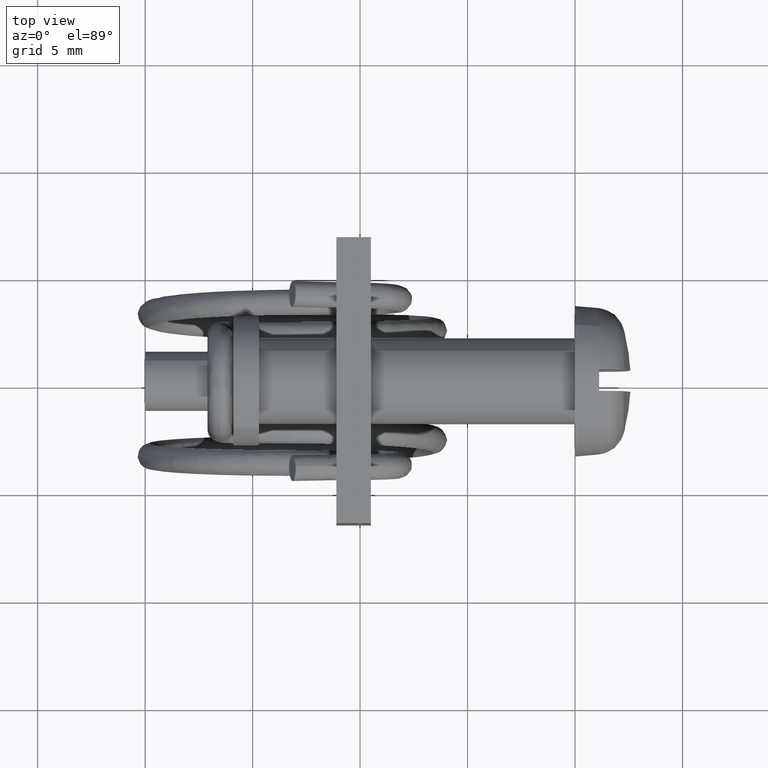
[diagram: clean part render]
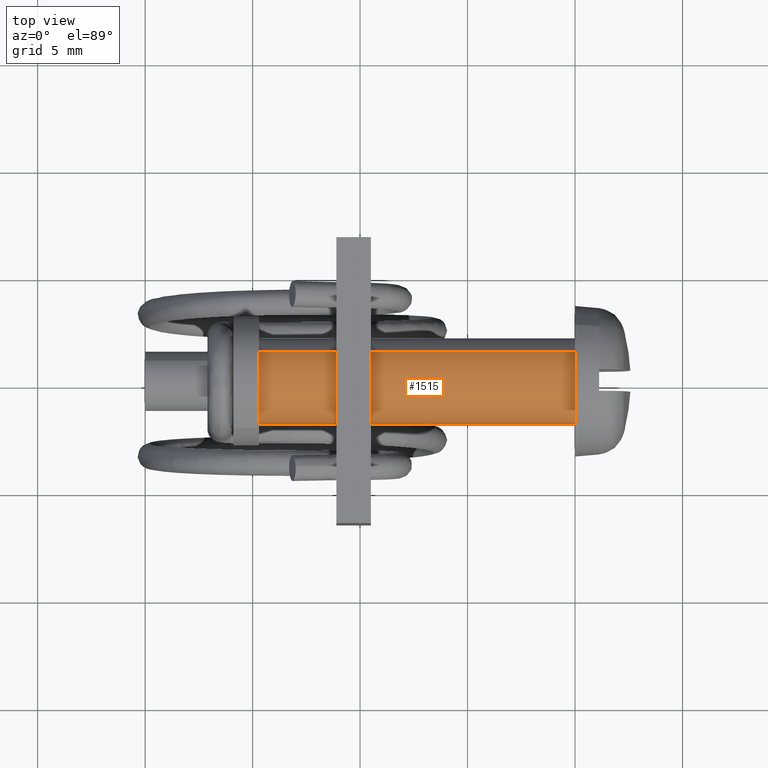
[diagram: same view with one face highlighted and labeled with its STEP entity id]
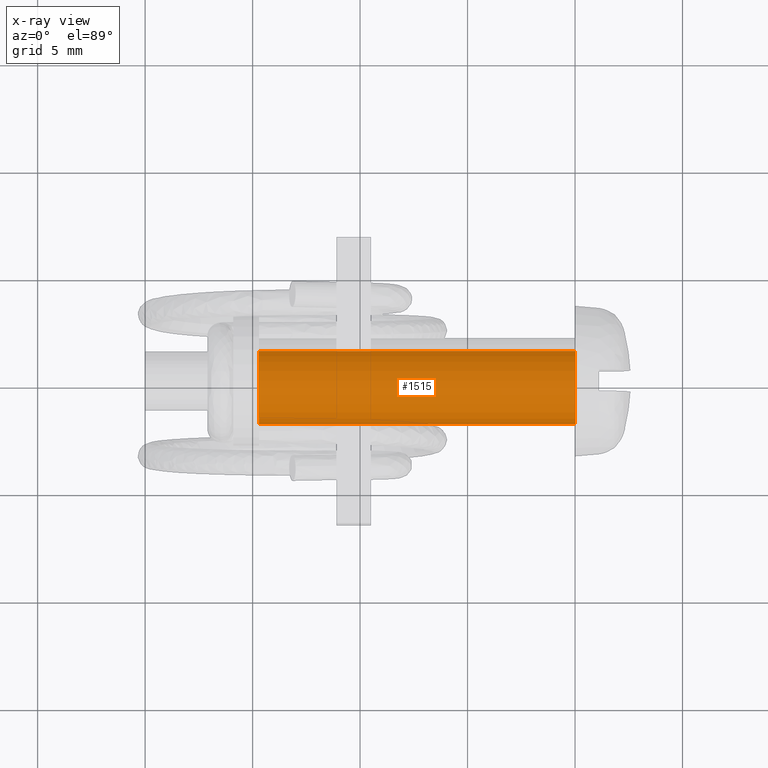
[diagram: x-ray of the same camera — body ghosted, the highlighted face saturated]
A machine part, top view. The second image highlights one B-rep face of the part: STEP entity #1515.
The next image is the same camera in x-ray: the body ghosted, the highlighted face saturated — about 0% of this face is hidden behind the body in this view.
In plain terms, the highlighted face is a freeform B-spline surface patch.
Its self-contained STEP definition (entity closure, byte-faithful):
#1169=CARTESIAN_POINT('',(-14.700000000000090,-1.376709074266970,-1.450748699295900));
#1170=VERTEX_POINT('',#1169);
#1180=CARTESIAN_POINT('',(-14.700000000000200,-1.999999999999972,0.000000336783781));
#1181=VERTEX_POINT('',#1180);
#1182=CARTESIAN_POINT('',(-14.700000000000090,-1.376709074266970,-1.450748699295900));
#1183=CARTESIAN_POINT('',(-14.700000000000120,-1.499390220607086,-1.334392403262295));
#1184=CARTESIAN_POINT('',(-14.700000000000090,-1.666421277100797,-1.129720783756586));
#1185=CARTESIAN_POINT('',(-14.700000000000140,-1.861205923868284,-0.762977249641866));
#1186=CARTESIAN_POINT('',(-14.700000000000230,-1.973397682854460,-0.405790248794317));
#1187=CARTESIAN_POINT('',(-14.700000000000150,-2.000010282984071,-0.126808037152926));
#1188=CARTESIAN_POINT('',(-14.700000000000200,-1.999999999999972,0.000000336783781));
#1189=B_SPLINE_CURVE_WITH_KNOTS('',3,(#1182,#1183,#1184,#1185,#1186,#1187,#1188),.UNSPECIFIED.,.F.,.U.,(4,1,1,1,4),(9.544020E-009,0.507239891594600,0.786226788890516,1.242737819834368,1.623167408407789),.UNSPECIFIED.);
#1190=EDGE_CURVE('',#1170,#1181,#1189,.T.);
#1192=CARTESIAN_POINT('',(-14.700000000000200,0.0,2.0));
#1193=VERTEX_POINT('',#1192);
#1194=CARTESIAN_POINT('',(-14.700000000000200,-1.999999999999972,0.000000336783781));
#1195=CARTESIAN_POINT('',(-14.700000000000230,-2.000035983223918,0.155446519749069));
#1196=CARTESIAN_POINT('',(-14.700000000000150,-1.969313106513638,0.417227334405334));
#1197=CARTESIAN_POINT('',(-14.700000000000230,-1.837951308691051,0.823294776388127));
#1198=CARTESIAN_POINT('',(-14.700000000000101,-1.642944839514601,1.167555491397967));
#1199=CARTESIAN_POINT('',(-14.700000000000310,-1.385347349354855,1.455235386556221));
#1200=CARTESIAN_POINT('',(-14.700000000000180,-1.129159333323061,1.660272266187684));
#1201=CARTESIAN_POINT('',(-14.700000000000090,-0.830289180870058,1.832038131839601));
#1202=CARTESIAN_POINT('',(-14.700000000000150,-0.449954780055621,1.965484535611923));
#1203=CARTESIAN_POINT('',(-14.700000000000379,-0.155446249810551,2.000035993727298));
#1204=CARTESIAN_POINT('',(-14.700000000000200,0.0,2.0));
#1205=B_SPLINE_CURVE_WITH_KNOTS('',3,(#1194,#1195,#1196,#1197,#1198,#1199,#1200,#1201,#1202,#1203,#1204),.UNSPECIFIED.,.F.,.U.,(4,1,1,1,1,1,1,1,4),(0.000000032458382,0.466331602151129,0.785403171026925,1.276281329842663,1.644428534287432,1.938960398357279,2.258032005585520,2.675280363094002,3.141612175933682),.UNSPECIFIED.);
#1206=EDGE_CURVE('',#1181,#1193,#1205,.T.);
#1208=CARTESIAN_POINT('',(-14.700000000000090,1.376709074266977,1.450748699295907));
#1209=VERTEX_POINT('',#1208);
#1210=CARTESIAN_POINT('',(-14.700000000000200,0.0,2.0));
#1211=CARTESIAN_POINT('',(-14.700000000000211,0.110718000780094,2.000002085990984));
#1212=CARTESIAN_POINT('',(-14.700000000000140,0.387524262398268,1.976989996397325));
#1213=CARTESIAN_POINT('',(-14.700000000000159,0.754035620600003,1.867375168001593));
#1214=CARTESIAN_POINT('',(-14.700000000000120,1.103526587302117,1.679871010089840));
#1215=CARTESIAN_POINT('',(-14.700000000000120,1.284932621495609,1.537862161106514));
#1216=CARTESIAN_POINT('',(-14.700000000000090,1.376709074266977,1.450748699295907));
#1217=B_SPLINE_CURVE_WITH_KNOTS('',3,(#1210,#1211,#1212,#1213,#1214,#1215,#1216),.UNSPECIFIED.,.F.,.U.,(4,1,1,1,4),(7.946627E-009,0.332159749364908,0.830396941274375,1.138833972317928,1.518445293771592),.UNSPECIFIED.);
#1218=EDGE_CURVE('',#1193,#1209,#1217,.T.);
#1396=CARTESIAN_POINT('',(-6.832913E-016,1.376709074501432,1.450748699073418));
#1397=VERTEX_POINT('',#1396);
#1398=CARTESIAN_POINT('',(-6.832913E-016,1.376709074501432,1.450748699073418));
#1399=CARTESIAN_POINT('',(-14.700000000000090,1.376709074266977,1.450748699295907));
#1400=QUASI_UNIFORM_CURVE('',1,(#1398,#1399),.UNSPECIFIED.,.F.,.U.);
#1401=EDGE_CURVE('',#1397,#1209,#1400,.T.);
#1430=CARTESIAN_POINT('',(-6.832913E-016,-1.376709074501425,-1.450748699073411));
#1431=VERTEX_POINT('',#1430);
#1442=CARTESIAN_POINT('',(-6.832913E-016,-1.376709074501425,-1.450748699073411));
#1443=CARTESIAN_POINT('',(-14.700000000000090,-1.376709074266970,-1.450748699295900));
#1444=QUASI_UNIFORM_CURVE('',1,(#1442,#1443),.UNSPECIFIED.,.F.,.U.);
#1445=EDGE_CURVE('',#1431,#1170,#1444,.T.);
#1452=CARTESIAN_POINT('',(0.367500000000005,-1.376709151387508,-1.450748742024575));
#1453=CARTESIAN_POINT('',(0.367500000000005,-2.827457893412082,-0.074039590637067));
#1454=CARTESIAN_POINT('',(0.367500000000005,-1.450748742024575,1.376709151387508));
#1455=CARTESIAN_POINT('',(0.367500000000005,-0.074039590637067,2.827457893412082));
#1456=CARTESIAN_POINT('',(0.367500000000005,1.376709151387508,1.450748742024575));
#1457=CARTESIAN_POINT('',(-15.076687500000210,-1.376709151387508,-1.450748742024575));
#1458=CARTESIAN_POINT('',(-15.076687500000203,-2.827457893412082,-0.074039590637067));
#1459=CARTESIAN_POINT('',(-15.076687500000210,-1.450748742024575,1.376709151387508));
#1460=CARTESIAN_POINT('',(-15.076687500000203,-0.074039590637067,2.827457893412082));
#1461=CARTESIAN_POINT('',(-15.076687500000210,1.376709151387508,1.450748742024575));
#1469=(BOUNDED_SURFACE()B_SPLINE_SURFACE(2,1,((#1452,#1457),(#1453,#1458),(#1454,#1459),(#1455,#1460),(#1456,#1461)),.UNSPECIFIED.,.F.,.F.,.U.)B_SPLINE_SURFACE_WITH_KNOTS((3,2,3),(2,2),(0.0,3.313708498984759,6.627416997969519),(0.0,15.444187500000210),.UNSPECIFIED.)GEOMETRIC_REPRESENTATION_ITEM()RATIONAL_B_SPLINE_SURFACE(((1.0,1.0),(0.707106781186548,0.707106781186548),(1.0,1.0),(0.707106781186548,0.707106781186548),(1.0,1.0)))REPRESENTATION_ITEM('')SURFACE());
#1470=ORIENTED_EDGE('',*,*,#1218,.F.);
#1471=ORIENTED_EDGE('',*,*,#1206,.F.);
#1472=ORIENTED_EDGE('',*,*,#1190,.F.);
#1473=ORIENTED_EDGE('',*,*,#1445,.F.);
#1474=CARTESIAN_POINT('',(-3.673819E-016,-1.999999999999972,0.000000336783781));
#1475=VERTEX_POINT('',#1474);
#1476=CARTESIAN_POINT('',(-6.832913E-016,-1.376709074501425,-1.450748699073411));
#1477=CARTESIAN_POINT('',(-6.642856E-016,-1.468703004549559,-1.363468627657917));
#1478=CARTESIAN_POINT('',(-6.210510E-016,-1.641579131822410,-1.164922923353486));
#1479=CARTESIAN_POINT('',(-5.455776E-016,-1.840018371193104,-0.818326905722579));
#1480=CARTESIAN_POINT('',(-4.594240E-016,-1.969795948479175,-0.422684031075992));
#1481=CARTESIAN_POINT('',(-3.986777E-016,-2.000025336407454,-0.143719284089662));
#1482=CARTESIAN_POINT('',(-3.673819E-016,-1.999999999999972,0.000000336783781));
#1483=B_SPLINE_CURVE_WITH_KNOTS('',3,(#1476,#1477,#1478,#1479,#1480,#1481,#1482),.UNSPECIFIED.,.F.,.U.,(4,1,1,1,4),(9.544168E-009,0.380429598037759,0.786226788734036,1.192013297307945,1.623167408084561),.UNSPECIFIED.);
#1484=EDGE_CURVE('',#1431,#1475,#1483,.T.);
#1485=ORIENTED_EDGE('',*,*,#1484,.T.);
#1486=CARTESIAN_POINT('',(-3.673819E-016,0.0,2.0));
#1487=VERTEX_POINT('',#1486);
#1488=CARTESIAN_POINT('',(-3.673819E-016,-1.999999999999972,0.000000336783781));
#1489=CARTESIAN_POINT('',(-3.673819E-016,-2.000035991135034,0.155446502187466));
#1490=CARTESIAN_POINT('',(-3.673819E-016,-1.969313102376483,0.417227345576082));
#1491=CARTESIAN_POINT('',(-3.673819E-016,-1.837951289924670,0.823294795753360));
#1492=CARTESIAN_POINT('',(-3.673819E-016,-1.642944880656769,1.167555458639528));
#1493=CARTESIAN_POINT('',(-3.673819E-016,-1.385347280093750,1.455235435368423));
#1494=CARTESIAN_POINT('',(-3.673819E-016,-1.129159418478643,1.660272204320028));
#1495=CARTESIAN_POINT('',(-3.673819E-016,-0.830289085734247,1.832038181752067));
#1496=CARTESIAN_POINT('',(-3.673819E-016,-0.449954859515675,1.965484506572510));
#1497=CARTESIAN_POINT('',(-3.673819E-016,-0.155446215904862,2.000036003083539));
#1498=CARTESIAN_POINT('',(-3.673819E-016,0.0,2.0));
#1499=B_SPLINE_CURVE_WITH_KNOTS('',3,(#1488,#1489,#1490,#1491,#1492,#1493,#1494,#1495,#1496,#1497,#1498),.UNSPECIFIED.,.F.,.U.,(4,1,1,1,1,1,1,1,4),(0.000000032458382,0.466331602151129,0.785403171026925,1.276281329842663,1.644428534287432,1.938960398357279,2.258032005585520,2.675280363094002,3.141612175933682),.UNSPECIFIED.);
#1500=EDGE_CURVE('',#1475,#1487,#1499,.T.);
#1501=ORIENTED_EDGE('',*,*,#1500,.T.);
#1502=CARTESIAN_POINT('',(-3.673819E-016,0.0,2.0));
#1503=CARTESIAN_POINT('',(-3.964180E-016,0.126537231213236,2.000013498326094));
#1504=CARTESIAN_POINT('',(-4.563034E-016,0.387512938902267,1.975155912460513));
#1505=CARTESIAN_POINT('',(-5.401838E-016,0.753057494595369,1.865830634811179));
#1506=CARTESIAN_POINT('',(-6.177347E-016,1.091018513778429,1.689673184711052));
#1507=CARTESIAN_POINT('',(-6.622316E-016,1.284932654814192,1.537862571650728));
#1508=CARTESIAN_POINT('',(-6.832913E-016,1.376709074501432,1.450748699073418));
#1509=B_SPLINE_CURVE_WITH_KNOTS('',3,(#1502,#1503,#1504,#1505,#1506,#1507,#1508),.UNSPECIFIED.,.F.,.U.,(4,1,1,1,4),(7.946511E-009,0.379611329486163,0.782943467566520,1.138833972560309,1.518445294094818),.UNSPECIFIED.);
#1510=EDGE_CURVE('',#1487,#1397,#1509,.T.);
#1511=ORIENTED_EDGE('',*,*,#1510,.T.);
#1512=ORIENTED_EDGE('',*,*,#1401,.T.);
#1513=EDGE_LOOP('',(#1470,#1471,#1472,#1473,#1485,#1501,#1511,#1512));
#1514=FACE_OUTER_BOUND('',#1513,.T.);
#1515=ADVANCED_FACE('',(#1514),#1469,.T.);